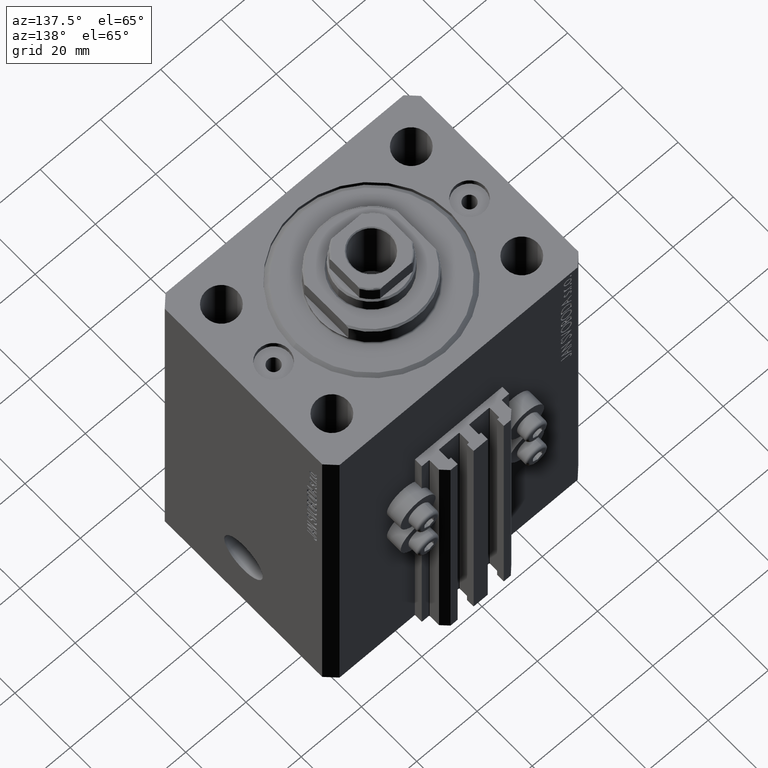
[diagram: clean part render]
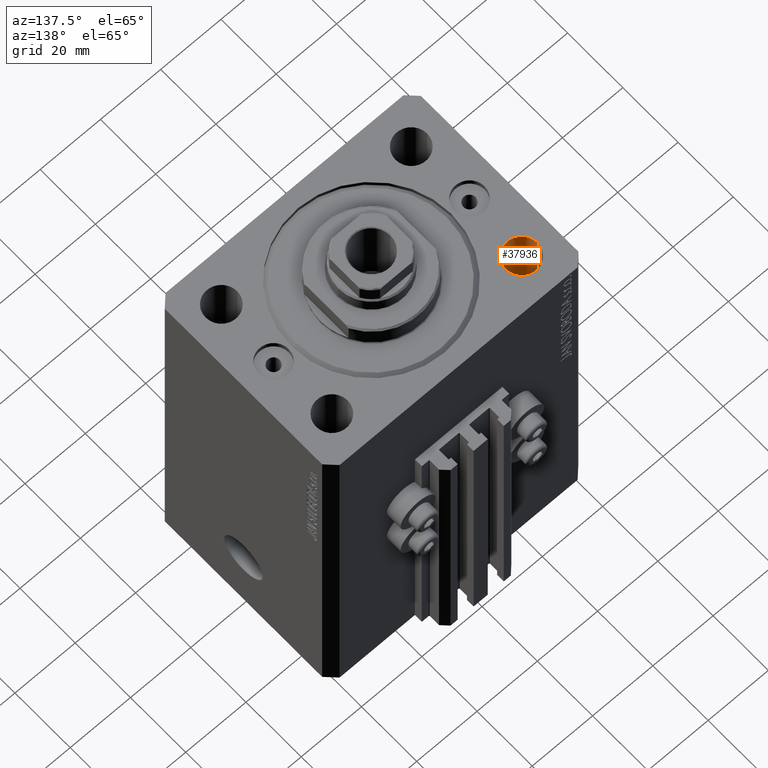
[diagram: same view with one face highlighted and labeled with its STEP entity id]
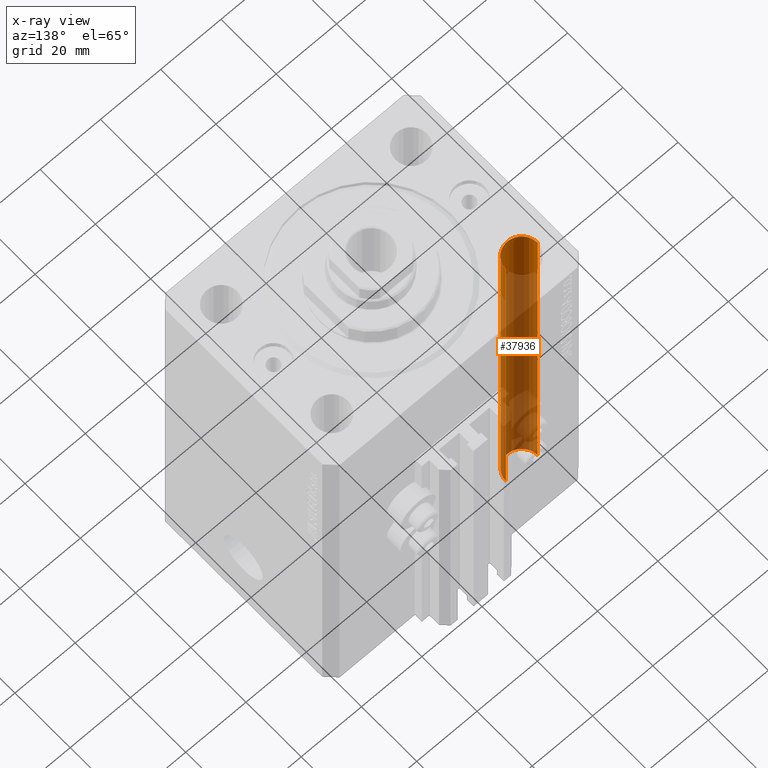
[diagram: x-ray of the same camera — body ghosted, the highlighted face saturated]
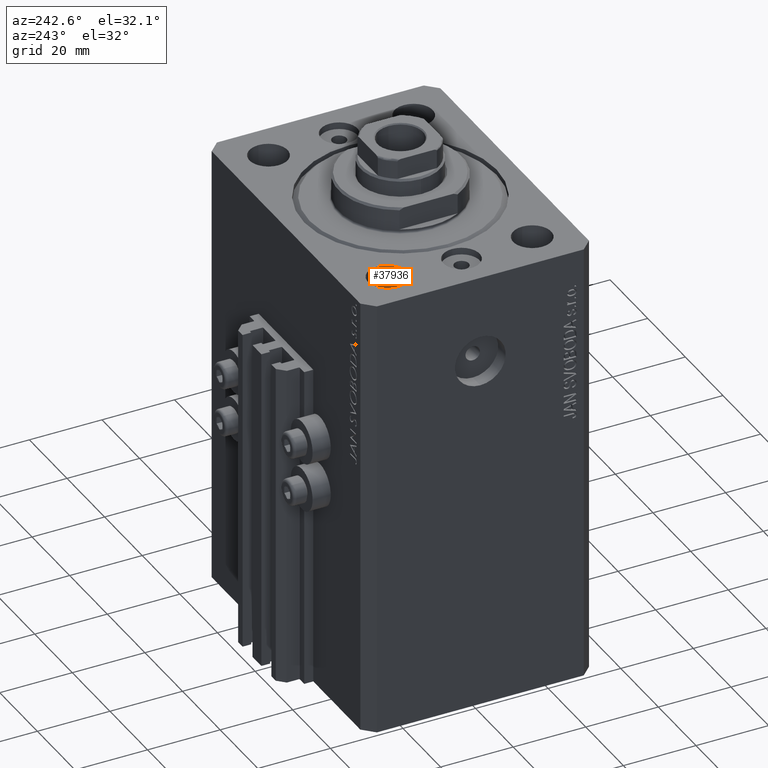
[diagram: same view with one face highlighted and labeled with its STEP entity id]
A machine part, auxiliary view. The second image highlights one B-rep face of the part: STEP entity #37936.
The next image is the same camera in x-ray: the body ghosted, the highlighted face saturated — about 82% of this face is hidden behind the body in this view.
A second angle (auxiliary view) of the same face is appended — the face is thin or edge-on in the first view.
In plain terms, the highlighted cylindrical surface (edge-blend (fillet) strip) has radius 5.25 mm, axis along (0, 0, 1).
Its self-contained STEP definition (entity closure, byte-faithful):
#728 = CARTESIAN_POINT ( 'NONE',  ( -26.25000000000000000, 19.99999999999999645, -137.8492424049174758 ) ) ;
#1755 = DIRECTION ( 'NONE',  ( -0.000000000000000000, -0.000000000000000000, 1.000000000000000000 ) ) ;
#2237 = DIRECTION ( 'NONE',  ( 1.000000000000000000, 0.000000000000000000, 0.000000000000000000 ) ) ;
#2406 = AXIS2_PLACEMENT_3D ( 'NONE', #37899, #5177, #2237 ) ;
#5177 = DIRECTION ( 'NONE',  ( -0.000000000000000000, -0.000000000000000000, -1.000000000000000000 ) ) ;
#7609 = CARTESIAN_POINT ( 'NONE',  ( -36.75000000000000000, 19.99999999999999645, -123.0000000000000000 ) ) ;
#10913 = VECTOR ( 'NONE', #33441, 1000.000000000000000 ) ;
#11120 = AXIS2_PLACEMENT_3D ( 'NONE', #32044, #29416, #21793 ) ;
#15179 = CYLINDRICAL_SURFACE ( 'NONE', #39722, 5.250000000000000888 ) ;
#16369 = EDGE_CURVE ( 'NONE', #40353, #31517, #36796, .T. ) ;
#18855 = VERTEX_POINT ( 'NONE', #35417 ) ;
#19189 = CARTESIAN_POINT ( 'NONE',  ( -26.25000000000000000, 19.99999999999999645, 0.000000000000000000 ) ) ;
#19682 = CARTESIAN_POINT ( 'NONE',  ( -31.50000000000000000, 19.99999999999999645, -137.8492424049174758 ) ) ;
#20058 = ORIENTED_EDGE ( 'NONE', *, *, #40320, .T. ) ;
#21793 = DIRECTION ( 'NONE',  ( 1.000000000000000000, 0.000000000000000000, 0.000000000000000000 ) ) ;
#22720 = VERTEX_POINT ( 'NONE', #7609 ) ;
#23154 = EDGE_CURVE ( 'NONE', #18855, #31517, #29418, .T. ) ;
#24412 = CARTESIAN_POINT ( 'NONE',  ( -36.75000000000000000, 19.99999999999999645, -137.8492424049174758 ) ) ;
#26924 = CARTESIAN_POINT ( 'NONE',  ( -26.25000000000000000, 19.99999999999999645, -123.0000000000000000 ) ) ;
#27308 = EDGE_CURVE ( 'NONE', #22720, #18855, #38512, .T. ) ;
#29416 = DIRECTION ( 'NONE',  ( 0.000000000000000000, 0.000000000000000000, 1.000000000000000000 ) ) ;
#29418 = CIRCLE ( 'NONE', #11120, 5.250000000000000888 ) ;
#30130 = ORIENTED_EDGE ( 'NONE', *, *, #23154, .T. ) ;
#31325 = ORIENTED_EDGE ( 'NONE', *, *, #27308, .T. ) ;
#31517 = VERTEX_POINT ( 'NONE', #19189 ) ;
#32044 = CARTESIAN_POINT ( 'NONE',  ( -31.50000000000000000, 19.99999999999999645, 0.000000000000000000 ) ) ;
#32935 = CIRCLE ( 'NONE', #2406, 5.250000000000000888 ) ;
#33441 = DIRECTION ( 'NONE',  ( -0.000000000000000000, -0.000000000000000000, 1.000000000000000000 ) ) ;
#34011 = FACE_OUTER_BOUND ( 'NONE', #42800, .T. ) ;
#35417 = CARTESIAN_POINT ( 'NONE',  ( -36.75000000000000000, 19.99999999999999645, 0.000000000000000000 ) ) ;
#36416 = VECTOR ( 'NONE', #1755, 1000.000000000000000 ) ;
#36796 = LINE ( 'NONE', #728, #10913 ) ;
#37140 = DIRECTION ( 'NONE',  ( -0.000000000000000000, -0.000000000000000000, 1.000000000000000000 ) ) ;
#37899 = CARTESIAN_POINT ( 'NONE',  ( -31.50000000000000000, 19.99999999999999645, -123.0000000000000000 ) ) ;
#37936 = ADVANCED_FACE ( 'NONE', ( #34011 ), #15179, .F. ) ;
#38512 = LINE ( 'NONE', #24412, #36416 ) ;
#39722 = AXIS2_PLACEMENT_3D ( 'NONE', #19682, #37140, #40493 ) ;
#40320 = EDGE_CURVE ( 'NONE', #40353, #22720, #32935, .T. ) ;
#40353 = VERTEX_POINT ( 'NONE', #26924 ) ;
#40493 = DIRECTION ( 'NONE',  ( 1.000000000000000000, 0.000000000000000000, 0.000000000000000000 ) ) ;
#42800 = EDGE_LOOP ( 'NONE', ( #20058, #31325, #30130, #43335 ) ) ;
#43335 = ORIENTED_EDGE ( 'NONE', *, *, #16369, .F. ) ;